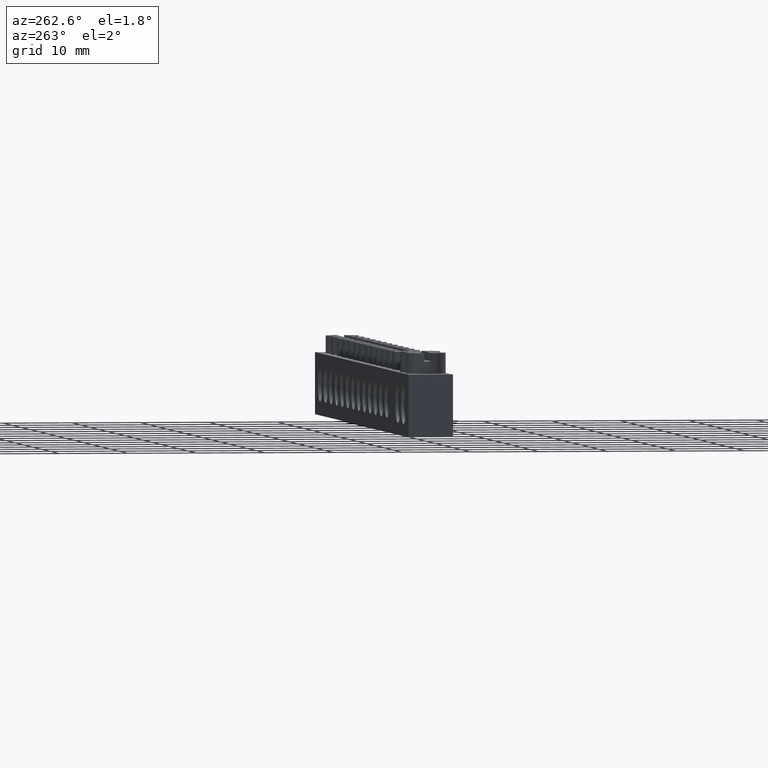
[diagram: clean part render]
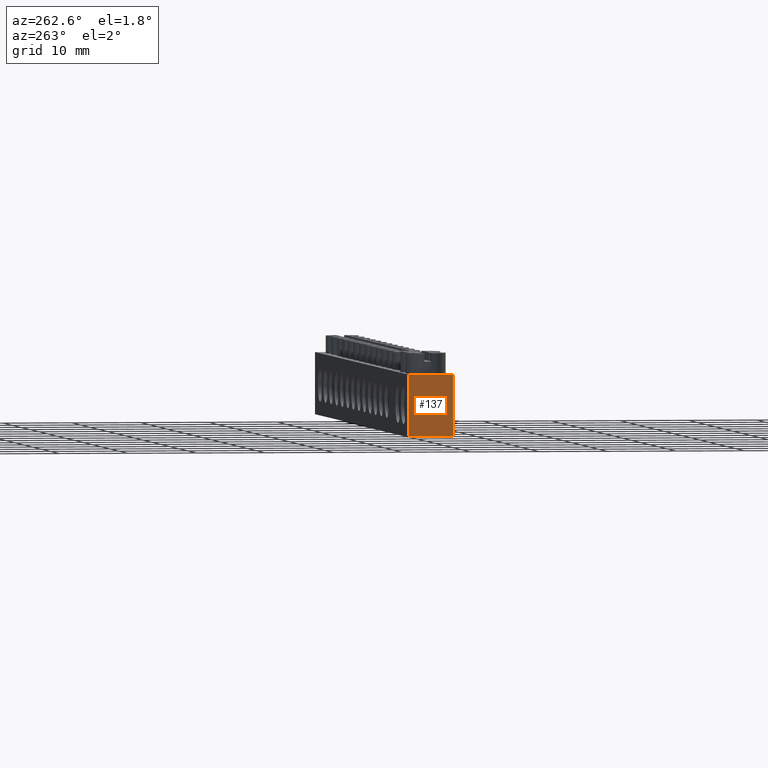
[diagram: same view with one face highlighted and labeled with its STEP entity id]
A machine part, auxiliary view. The second image highlights one B-rep face of the part: STEP entity #137.
In plain terms, the highlighted planar face has unit normal (1, -0, 0).
Its self-contained STEP definition (entity closure, byte-faithful):
#137 = ADVANCED_FACE ( 'NONE', ( #1464 ), #1492, .F. ) ;
#459 = VERTEX_POINT ( 'NONE', #6203 ) ;
#464 = VERTEX_POINT ( 'NONE', #6217 ) ;
#475 = VERTEX_POINT ( 'NONE', #6239 ) ;
#478 = VERTEX_POINT ( 'NONE', #6266 ) ;
#1464 = FACE_OUTER_BOUND ( 'NONE', #4331, .T. ) ;
#1492 = PLANE ( 'NONE',  #9194 ) ;
#1512 = DIRECTION ( 'NONE',  ( 0.0000000000000000000, 0.0000000000000000000, -1.000000000000000000 ) ) ;
#1531 = CARTESIAN_POINT ( 'NONE',  ( -0.2999999999999999900, 0.0000000000000000000, 9.000000000000001800 ) ) ;
#1534 = DIRECTION ( 'NONE',  ( 1.000000000000000000, -0.0000000000000000000, 0.0000000000000000000 ) ) ;
#2199 = VECTOR ( 'NONE', #9700, 1000.000000000000000 ) ;
#2201 = VECTOR ( 'NONE', #9669, 1000.000000000000000 ) ;
#2221 = VECTOR ( 'NONE', #9697, 1000.000000000000000 ) ;
#2233 = VECTOR ( 'NONE', #9725, 1000.000000000000000 ) ;
#3837 = ORIENTED_EDGE ( 'NONE', *, *, #6982, .F. ) ;
#3844 = ORIENTED_EDGE ( 'NONE', *, *, #6978, .T. ) ;
#3845 = ORIENTED_EDGE ( 'NONE', *, *, #6976, .F. ) ;
#3882 = ORIENTED_EDGE ( 'NONE', *, *, #6979, .T. ) ;
#4331 = EDGE_LOOP ( 'NONE', ( #3844, #3837, #3882, #3845 ) ) ;
#6203 = CARTESIAN_POINT ( 'NONE',  ( -0.2999999999999999900, 0.0000000000000000000, 0.0000000000000000000 ) ) ;
#6217 = CARTESIAN_POINT ( 'NONE',  ( -0.2999999999999999900, 6.499999999999999100, 0.0000000000000000000 ) ) ;
#6239 = CARTESIAN_POINT ( 'NONE',  ( -0.2999999999999999900, 0.0000000000000000000, 9.000000000000001800 ) ) ;
#6266 = CARTESIAN_POINT ( 'NONE',  ( -0.2999999999999999900, 6.499999999999999100, 9.000000000000001800 ) ) ;
#6976 = EDGE_CURVE ( 'NONE', #459, #464, #9693, .T. ) ;
#6978 = EDGE_CURVE ( 'NONE', #459, #475, #9691, .T. ) ;
#6979 = EDGE_CURVE ( 'NONE', #478, #464, #9692, .T. ) ;
#6982 = EDGE_CURVE ( 'NONE', #478, #475, #9710, .T. ) ;
#9194 = AXIS2_PLACEMENT_3D ( 'NONE', #1531, #1534, #1512 ) ;
#9667 = CARTESIAN_POINT ( 'NONE',  ( -0.2999999999999999900, 0.0000000000000000000, 0.0000000000000000000 ) ) ;
#9669 = DIRECTION ( 'NONE',  ( 0.0000000000000000000, 1.000000000000000000, 0.0000000000000000000 ) ) ;
#9678 = CARTESIAN_POINT ( 'NONE',  ( -0.2999999999999999900, 0.0000000000000000000, 9.000000000000001800 ) ) ;
#9691 = LINE ( 'NONE', #9678, #2233 ) ;
#9692 = LINE ( 'NONE', #9709, #2221 ) ;
#9693 = LINE ( 'NONE', #9667, #2201 ) ;
#9697 = DIRECTION ( 'NONE',  ( 0.0000000000000000000, 0.0000000000000000000, -1.000000000000000000 ) ) ;
#9700 = DIRECTION ( 'NONE',  ( 0.0000000000000000000, -1.000000000000000000, 0.0000000000000000000 ) ) ;
#9709 = CARTESIAN_POINT ( 'NONE',  ( -0.2999999999999999900, 6.499999999999999100, 9.000000000000001800 ) ) ;
#9710 = LINE ( 'NONE', #9717, #2199 ) ;
#9717 = CARTESIAN_POINT ( 'NONE',  ( -0.2999999999999999900, 6.499999999999999100, 9.000000000000001800 ) ) ;
#9725 = DIRECTION ( 'NONE',  ( 0.0000000000000000000, 0.0000000000000000000, 1.000000000000000000 ) ) ;